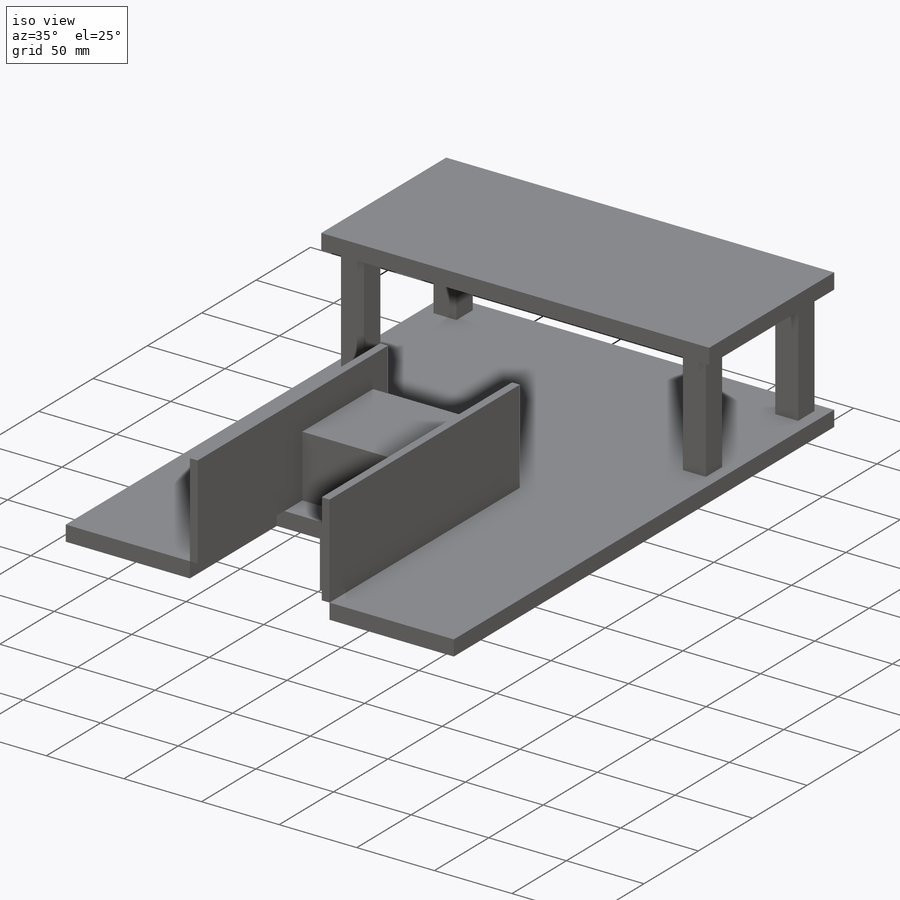
[diagram: iso view]
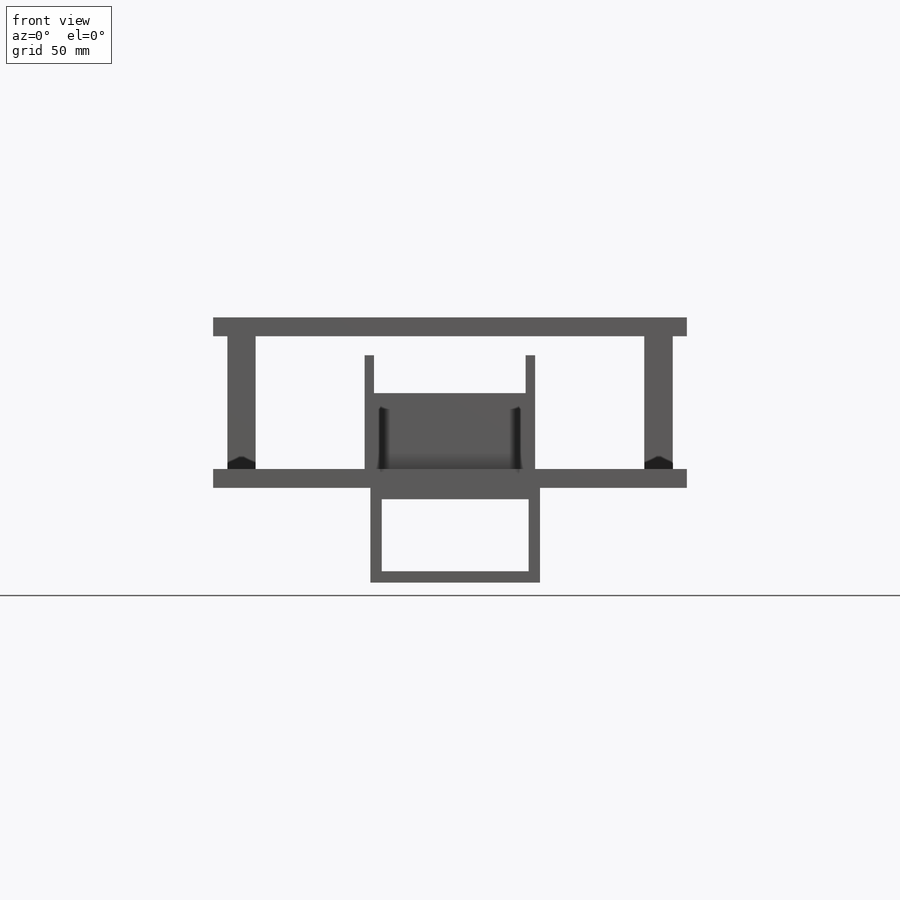
[diagram: front view]
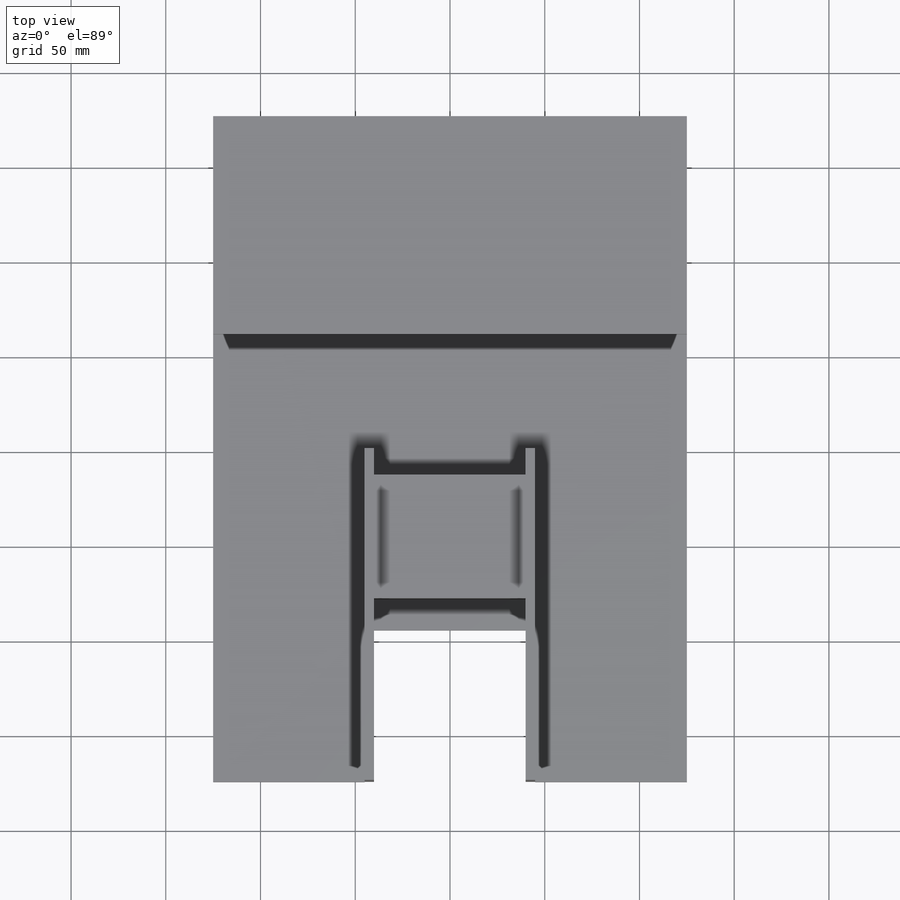
[diagram: top view]
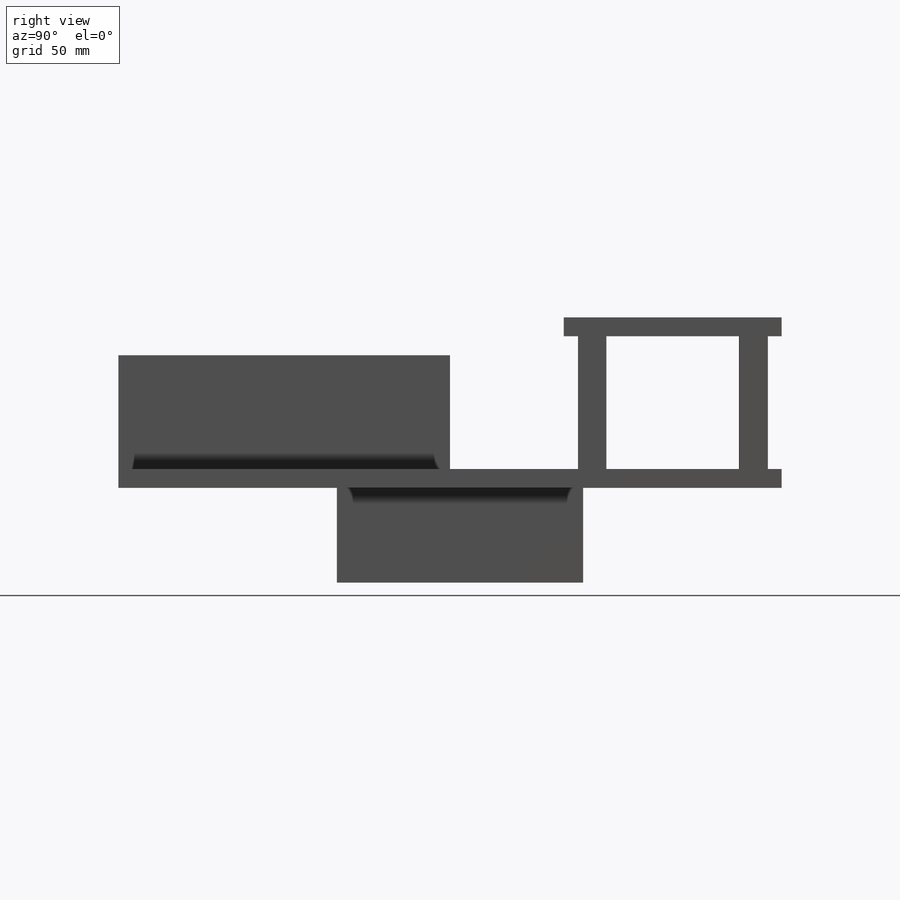
[diagram: right view]
SOLIDWORKS PART (.sldprt)
format: sldprt  version: not decoded by parser v0  size: 292,864 bytes
history: native  units: mm
features: sketch x7, extrude x5, cut_extrude x2, material x1 (+12 scaffold rows collapsed)
feature tree (27):
  scaffold x12  (default folders/planes/origin — collapsed)
  material  "Material <not specified>"
  sketch  "Sketch2"  dims[c1.D1=350.0mm c1.D2=250.0mm c1.D3=80.0mm c1.D4=90.0mm c2.D3=80.0mm c2.D4=90.0mm c2.D5=80.0mm c2.D6=80.0mm]
  extrude  "Boss-Extrude1"  Depth=10mm
  sketch  "Sketch3"  dims[D1=175.0mm D2=175.0mm D3=5.0mm D4=5.0mm]
  extrude  "Boss-Extrude3"  Depth=60mm
  sketch  "Sketch4"  dims[c1.D1=65.0mm c1.D2=15.0mm c1.D3=15.0mm c1.D4=15.0mm c1.D5=100.0mm c1.D6=~18.911812mm c1.D7=~5.544094mm c2.D6=7.5mm]
  extrude  "Boss-Extrude4"  Depth=70mm
  sketch  "Sketch5"
  cut_extrude  "Cut-Extrude1"  Depth=30mm
  sketch  "Sketch6"  dims[D1=7.5mm]
  extrude  "Boss-Extrude5"  Depth=10mm
  sketch  "Sketch7"
  extrude  "Boss-Extrude6"  Depth=50mm
  sketch  "Sketch8"  dims[D1=6.0mm D2=6.0mm D3=6.0mm D4=6.0mm]
  cut_extrude  "Cut-Extrude4"  [1 undecoded]
decode coverage: 11 of 14 modeling features carry decoded parameters
note: ~ marks probable driven/reference dimensions
note: 1 parameter value undecoded
note: suppression state not decoded; provenance and decode notes live in map.json
